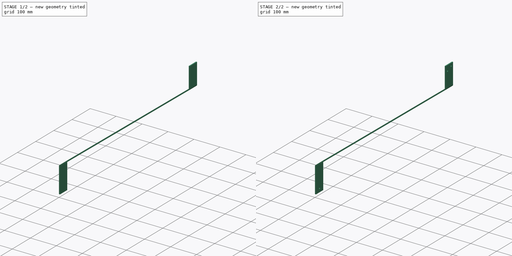
[diagram: build sequence overview — one tinted view per stage of 2, left to right]
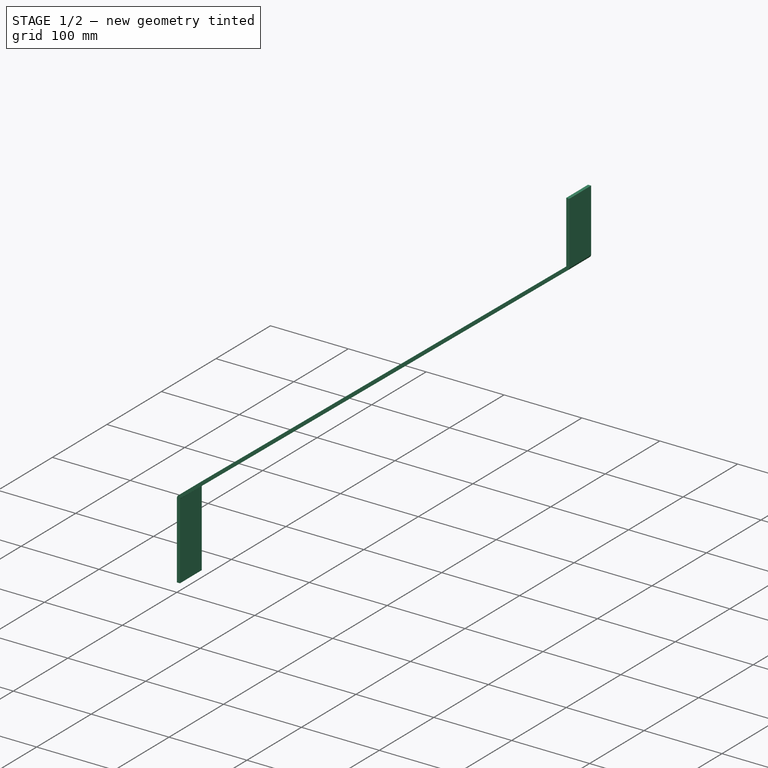
[diagram: stage 1 of 2 — iso view after this stage's code; geometry added in this stage tinted green]
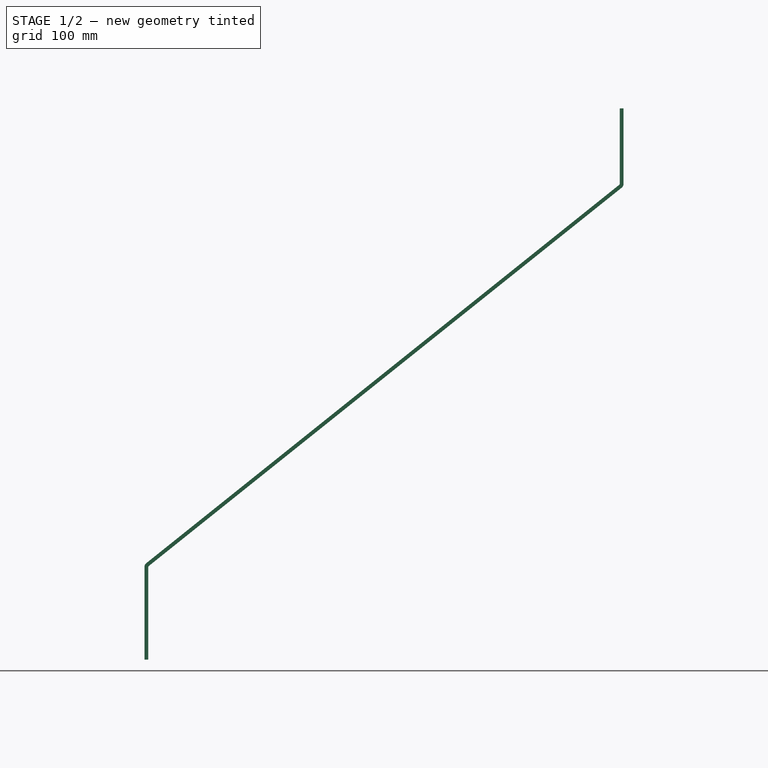
[diagram: stage 1 of 2 — front view after this stage's code; geometry added in this stage tinted green]
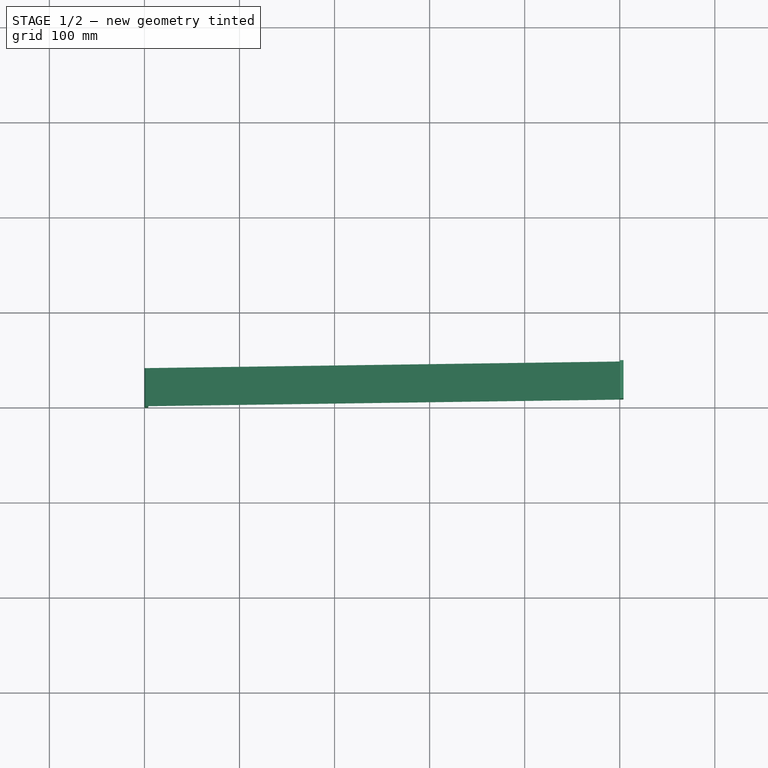
[diagram: stage 1 of 2 — top view after this stage's code; geometry added in this stage tinted green]
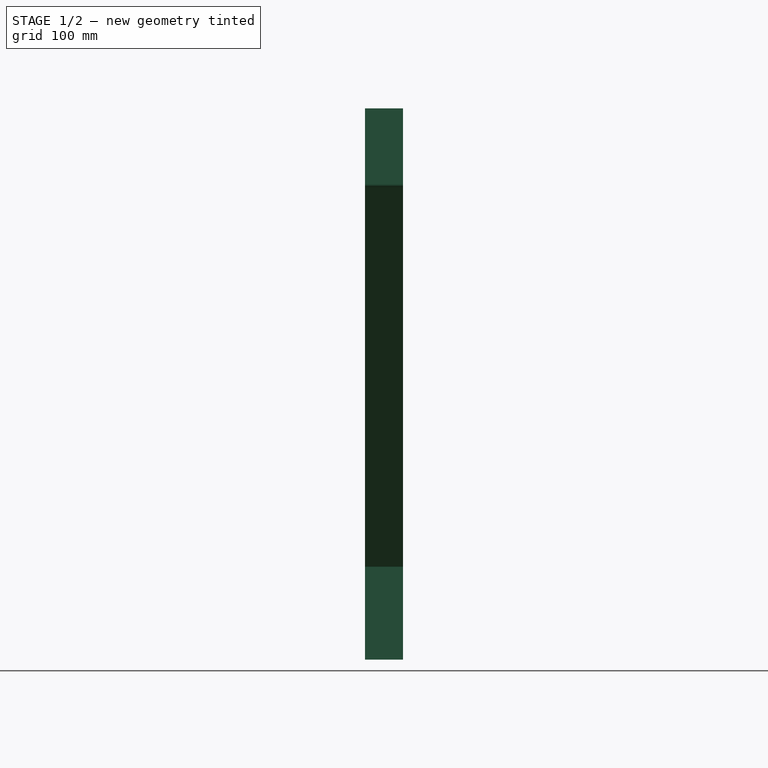
[diagram: stage 1 of 2 — right view after this stage's code; geometry added in this stage tinted green]
FCSTD DOCUMENT  (FreeCAD 0.18.4R)
Label: solar_panel_mount_bracket_1
License: All rights reserved
LicenseURL: http://en.wikipedia.org/wiki/All_rights_reserved
objects: Sketcher::SketchObject×4, PartDesign::Hole×2, Part::FeaturePython×1, PartDesign::FeatureBase×1, PartDesign::Body×1, Part::Feature×1
note: 12 computed .brp shape members not serialized (recipe doc carries the construction recipe); baked Part::Feature solids carry a one-line shape summary decoded from their .brp

FEATURE [Sketcher::SketchObject] Sketch
  Placement = pos=(0,0,0) rot=(-1,0,0;4.71239rad)
  sketch-geometry (3):
    g0: LineSegment StartX=0 StartY=0 StartZ=0 EndX=0 EndY=100 EndZ=0
    g1: LineSegment StartX=0 StartY=100 StartZ=0 EndX=500 EndY=500 EndZ=0
    g2: LineSegment StartX=500 StartY=500 StartZ=0 EndX=500 EndY=580 EndZ=0
  constraints (9):
    c: Vertical(g0)
    c: Coincident(g0,g1)
    c: Coincident(g1,g2)
    c: Vertical(g2)
    c: Coincident(g0,g-1)
    c: DistanceX(g-1,g1) = 500
    c: DistanceY(g0,g0) = 100
    c: DistanceY(g-1,g1) = 500
    c: DistanceY(g-1,g2) = 580
FEATURE [Part::FeaturePython] BaseBend  # WARN: FeaturePython — macro-defined, semantics opaque (R4)
  BendSide = 0
  BendSketch = -> Sketch
  length = 40
  radius = 1
  thickness = 4
FEATURE [PartDesign::FeatureBase] BaseFeature
  BaseFeature = -> BaseBend
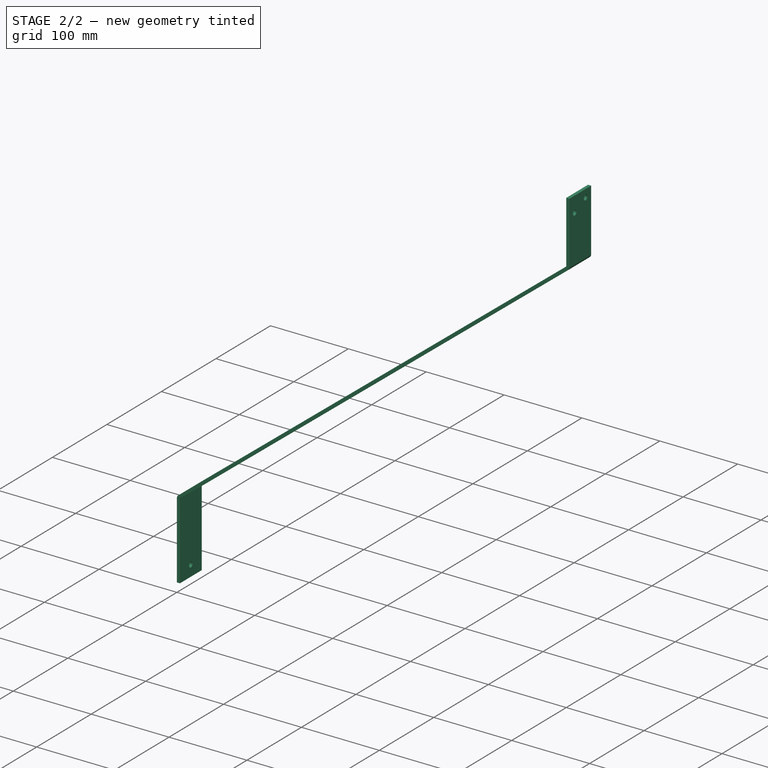
[diagram: stage 2 of 2 — iso view after this stage's code; geometry added in this stage tinted green]
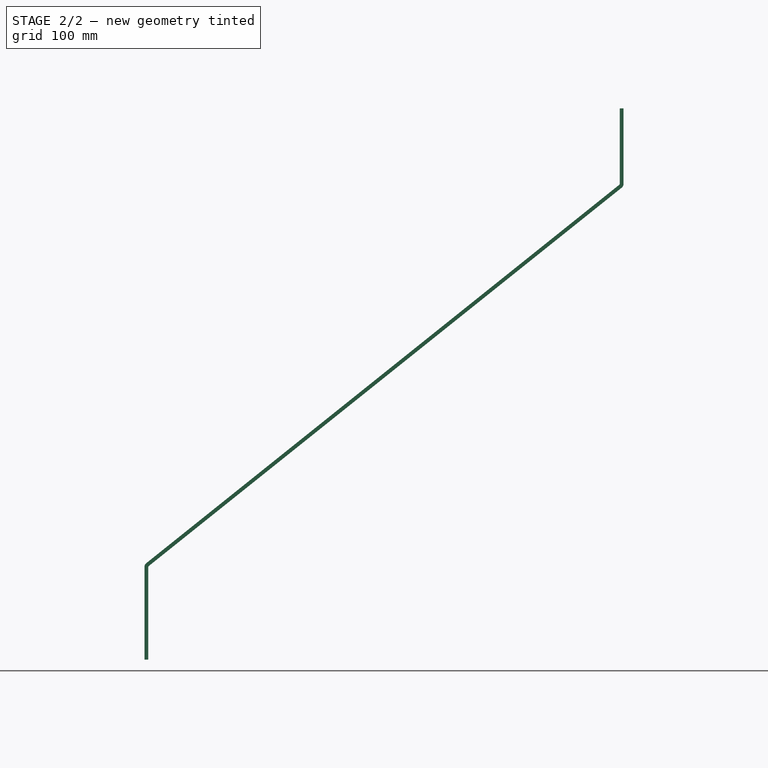
[diagram: stage 2 of 2 — front view after this stage's code; geometry added in this stage tinted green]
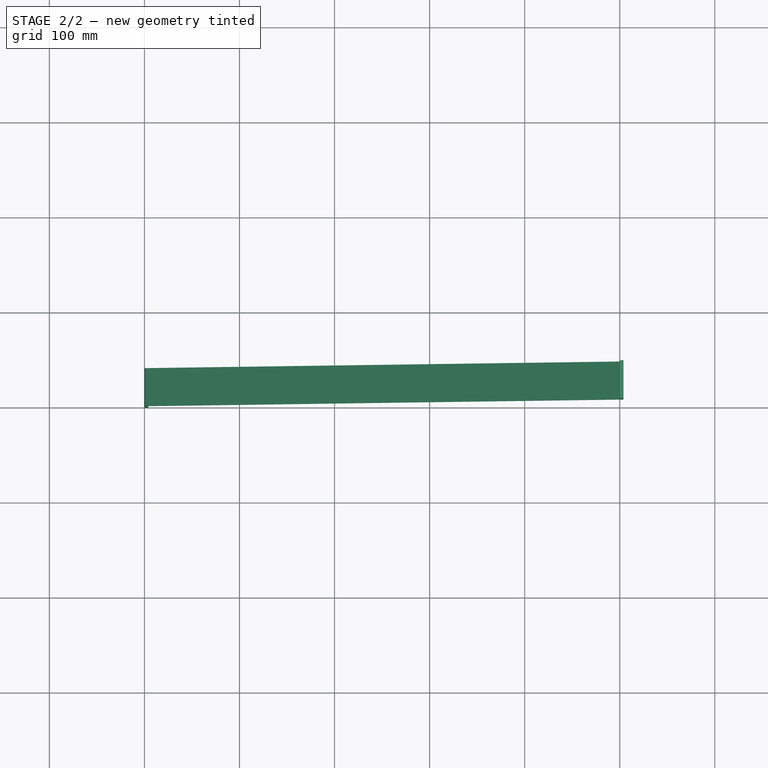
[diagram: stage 2 of 2 — top view after this stage's code; geometry added in this stage tinted green]
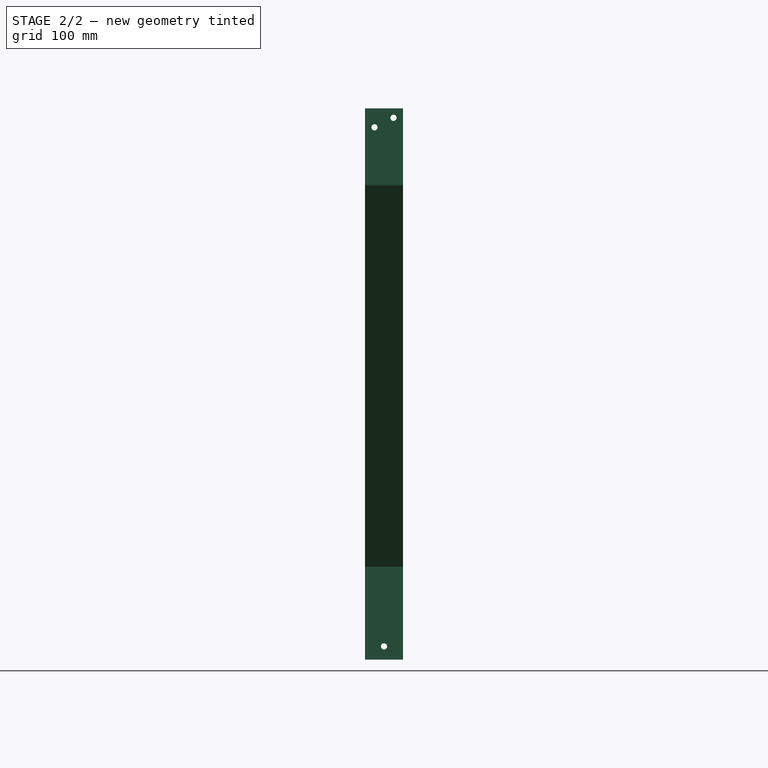
[diagram: stage 2 of 2 — right view after this stage's code; geometry added in this stage tinted green]
FEATURE [Sketcher::SketchObject] Sketch001
  MapMode = 5
  Placement = pos=(0,0,0) rot=(-0.57735,0.57735,0.57735;4.18879rad)
  Support = -> [BaseFeature]
  sketch-geometry (5):
    g0: LineSegment [constr] StartX=0 StartY=0 StartZ=0 EndX=-20 EndY=0 EndZ=0
    g1: LineSegment [constr] StartX=-20 StartY=0 StartZ=0 EndX=-20 EndY=14 EndZ=0
    g2: LineSegment [constr] StartX=-20 StartY=14 StartZ=0 EndX=0 EndY=14 EndZ=0
    g3: LineSegment [constr] StartX=0 StartY=14 StartZ=0 EndX=0 EndY=0 EndZ=0
    g4: Circle CenterX=-20 CenterY=14 CenterZ=0 NormalX=0 NormalY=0 NormalZ=1 AngleXU=0 Radius=6.5
  constraints (13):
    c: Coincident(g0,g1)
    c: Coincident(g1,g2)
    c: Coincident(g2,g3)
    c: Coincident(g3,g0)
    c: Horizontal(g0)
    c: Horizontal(g2)
    c: Vertical(g1)
    c: Vertical(g3)
    c: Coincident(g0,g-1)
    c: DistanceX(g0,g0) = 20
    c: DistanceY(g3,g3) = 14
    c: Radius(g4) = 6.5
    c: Coincident(g4,g1)
FEATURE [PartDesign::Hole] Hole
  BaseFeature = -> BaseFeature
  Depth = 25
  DepthType = 0
  Diameter = 6.5
  DrillPoint = 1
  DrillPointAngle = 118
  HoleCutCountersinkAngle = 90
  HoleCutDepth = 0
  HoleCutDiameter = 0
  HoleCutType = 0
  ModelActualThread = false
  Profile = -> Sketch001
  Tapered = false
  TaperedAngle = 90
  ThreadAngle = 0
  ThreadClass = 0
  ThreadCutOffInner = 0
  ThreadCutOffOuter = 0
  ThreadDirection = 0
  ThreadFit = 0
  ThreadPitch = 0
  ThreadSize = 0
  ThreadType = 0
  Threaded = false
FEATURE [Sketcher::SketchObject] Sketch002
  MapMode = 5
  Placement = pos=(500,0,3.574e-13) rot=(-0.57735,0.57735,0.57735;4.18879rad)
  Support = -> [Hole]
  sketch-geometry (14):
    g0: LineSegment [constr] StartX=-40 StartY=580 StartZ=0 EndX=0 EndY=580 EndZ=0
    g1: LineSegment [constr] StartX=0 StartY=580 StartZ=0 EndX=0 EndY=550 EndZ=0
    g2: LineSegment [constr] StartX=0 StartY=550 StartZ=0 EndX=-40 EndY=550 EndZ=0
    g3: LineSegment [constr] StartX=-40 StartY=550 StartZ=0 EndX=-40 EndY=580 EndZ=0
    g4: LineSegment [constr] StartX=-40 StartY=580 StartZ=0 EndX=-30 EndY=580 EndZ=0
    g5: LineSegment [constr] StartX=-30 StartY=580 StartZ=0 EndX=-30 EndY=570 EndZ=0
    g6: LineSegment [constr] StartX=-30 StartY=570 StartZ=0 EndX=-40 EndY=570 EndZ=0
    g7: LineSegment [constr] StartX=-40 StartY=570 StartZ=0 EndX=-40 EndY=580 EndZ=0
    g8: LineSegment [constr] StartX=-10 StartY=560 StartZ=0 EndX=0 EndY=560 EndZ=0
    g9: LineSegment [constr] StartX=0 StartY=560 StartZ=0 EndX=0 EndY=550 EndZ=0
    g10: LineSegment [constr] StartX=0 StartY=550 StartZ=0 EndX=-10 EndY=550 EndZ=0
    g11: LineSegment [constr] StartX=-10 StartY=550 StartZ=0 EndX=-10 EndY=560 EndZ=0
    g12: Circle CenterX=-10 CenterY=560 CenterZ=0 NormalX=0 NormalY=0 NormalZ=1 AngleXU=0 Radius=3.25
    g13: Circle CenterX=-30 CenterY=570 CenterZ=0 NormalX=0 NormalY=0 NormalZ=1 AngleXU=0 Radius=3.25
  constraints (38):
    c: Coincident(g0,g1)
    c: Coincident(g1,g2)
    c: Coincident(g2,g3)
    c: Coincident(g3,g0)
    c: Horizontal(g0)
    c: Horizontal(g2)
    c: Vertical(g1)
    c: Vertical(g3)
    c: PointOnObject(g0,g-2)
    c: DistanceY(g-1,g0) = 580
    c: DistanceX(g2,g2) = 40
    c: DistanceY(g1,g1) = 30
    c: Coincident(g4,g5)
    c: Coincident(g5,g6)
    c: Coincident(g6,g7)
    c: Coincident(g7,g4)
    c: Horizontal(g4)
    c: Horizontal(g6)
    c: Vertical(g5)
    c: Vertical(g7)
    c: Coincident(g8,g9)
    c: Coincident(g9,g10)
    c: Coincident(g10,g11)
    c: Coincident(g11,g8)
    c: Horizontal(g8)
    c: Horizontal(g10)
    c: Vertical(g9)
    c: Vertical(g11)
    c: Coincident(g9,g1)
    c: DistanceX(g10,g10) = 10
    c: DistanceY(g11,g11) = 10
    c: Radius(g12) = 3.25
    c: Coincident(g12,g8)
    c: DistanceX(g4,g4) = 10
    c: DistanceY(g5,g5) = 10
    c: Coincident(g4,g0)
    c: Radius(g13) = 3.25
    c: Coincident(g13,g5)
FEATURE [PartDesign::Hole] Hole001
  BaseFeature = -> Hole
  Depth = 25
  DepthType = 0
  Diameter = 6.5
  DrillPoint = 1
  DrillPointAngle = 118
  HoleCutCountersinkAngle = 90
  HoleCutDepth = 0
  HoleCutDiameter = 0
  HoleCutType = 0
  ModelActualThread = false
  Profile = -> Sketch002
  Tapered = false
  TaperedAngle = 90
  ThreadAngle = 0
  ThreadClass = 0
  ThreadCutOffInner = 0
  ThreadCutOffOuter = 0
  ThreadDirection = 0
  ThreadFit = 0
  ThreadPitch = 0
  ThreadSize = 0
  ThreadType = 0
  Threaded = false
FEATURE [PartDesign::Body] Body
  BaseFeature = -> BaseBend
  Group = -> [BaseFeature,Sketch001,Hole,Sketch002,Hole001]
  Origin = -> Origin
  Tip = -> Hole001
FEATURE [Part::Feature] Unfold
  shape: bbox 641.1 x 40 x 514 mm, 6 faces (baked)
FEATURE [Sketcher::SketchObject] Unfold_Sketch
  sketch-geometry (6):
    g0: LineSegment StartX=-34.3371 StartY=-4.9e-15 StartZ=0 EndX=-34.3371 EndY=40 EndZ=0
    g1: LineSegment StartX=-34.3371 StartY=-4.9e-15 StartZ=0 EndX=783.434 EndY=1.085e-13 EndZ=0
    g2: LineSegment StartX=783.434 StartY=1.084e-13 StartZ=0 EndX=783.434 EndY=40 EndZ=0
    g3: LineSegment StartX=-34.3371 StartY=40 StartZ=0 EndX=783.434 EndY=40 EndZ=0
    g4: LineSegment StartX=64.0662 StartY=40 StartZ=0 EndX=64.0662 EndY=7.1e-15 EndZ=0
    g5: LineSegment StartX=703.108 StartY=40 StartZ=0 EndX=703.108 EndY=9.95e-14 EndZ=0
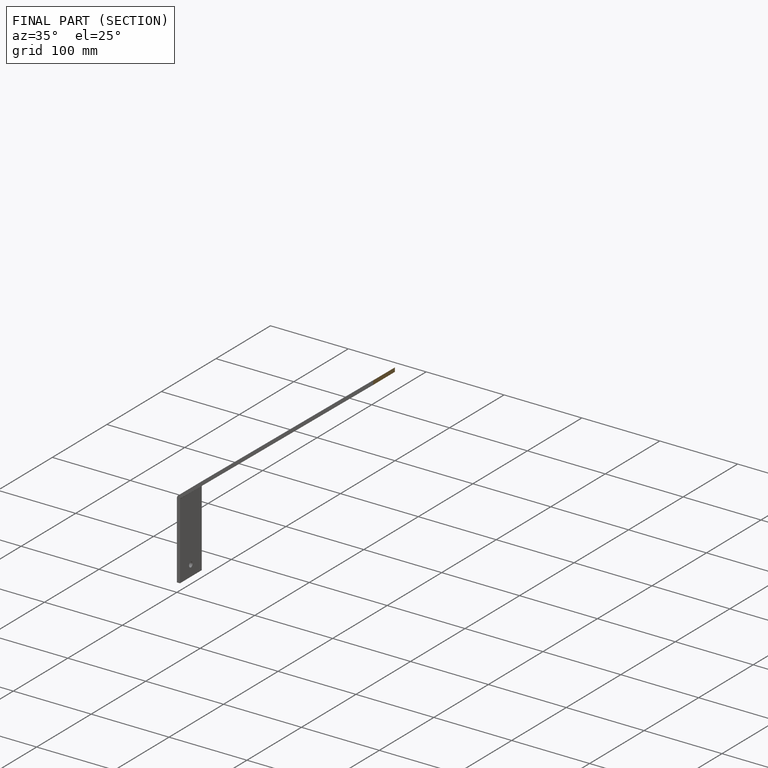
[diagram: finished part — half-section view (interior)]
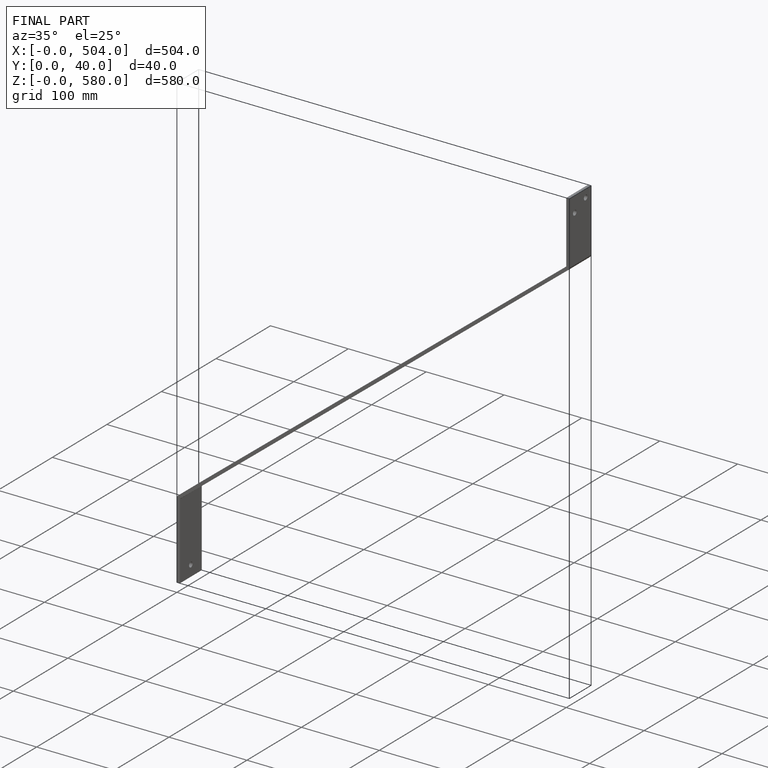
[diagram: finished part — iso view with bounding-box wireframe]
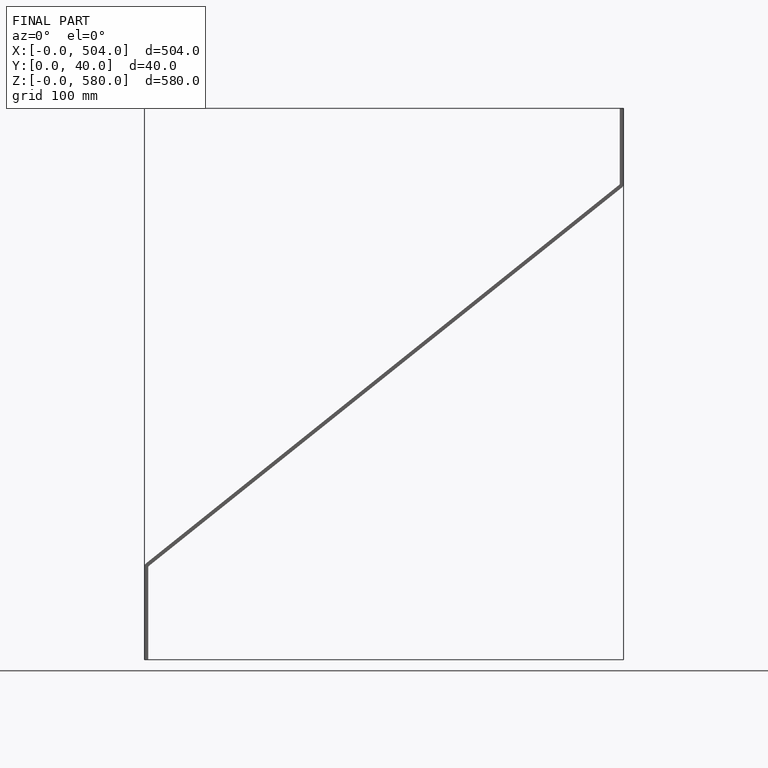
[diagram: finished part — front view with bounding-box wireframe]
